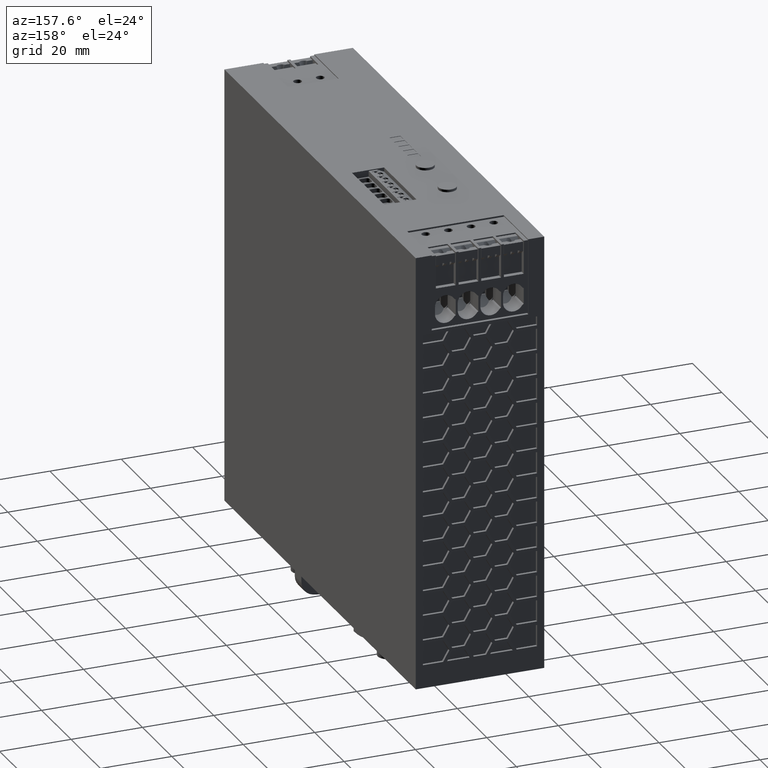
[diagram: clean part render]
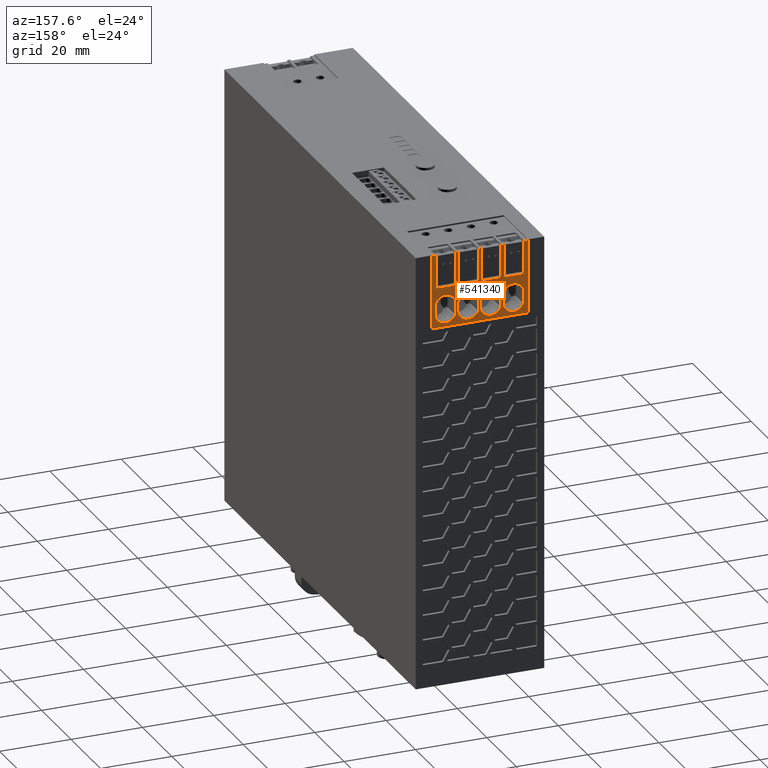
[diagram: same view with one face highlighted and labeled with its STEP entity id]
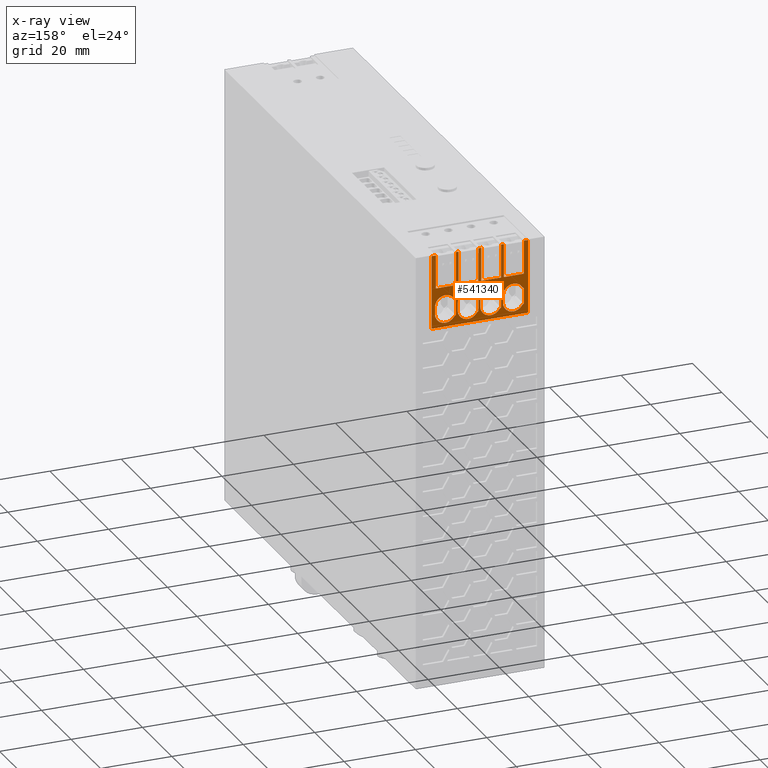
[diagram: x-ray of the same camera — body ghosted, the highlighted face saturated]
A machine part, auxiliary view. The second image highlights one B-rep face of the part: STEP entity #541340.
The next image is the same camera in x-ray: the body ghosted, the highlighted face saturated — about 0% of this face is hidden behind the body in this view.
In plain terms, the highlighted planar face has unit normal (0, 1, 0).
Its self-contained STEP definition (entity closure, byte-faithful):
#400070=CARTESIAN_POINT('',(31.5,129.900000002161,131.60000000419));
#400080=VERTEX_POINT('',#400070);
#400110=CARTESIAN_POINT('',(31.5,129.900000002161,131.2));
#400120=DIRECTION('',(0.,-6.12775601141841E-250,1.));
#400130=VECTOR('',#400120,1.);
#400140=LINE('',#400110,#400130);
#400150=CARTESIAN_POINT('',(31.5,129.900000002161,110.999999999047));
#400160=VERTEX_POINT('',#400150);
#400170=EDGE_CURVE('',#400160,#400080,#400140,.T.);
#400670=CARTESIAN_POINT('',(4.5,129.900000002161,110.999999999047));
#400680=VERTEX_POINT('',#400670);
#400730=CARTESIAN_POINT('',(4.5,129.900000002161,131.2));
#400740=DIRECTION('',(-0.,6.12775601141841E-250,-1.));
#400750=VECTOR('',#400740,1.);
#400760=LINE('',#400730,#400750);
#400770=CARTESIAN_POINT('',(4.5,129.900000002161,131.60000000419));
#400780=VERTEX_POINT('',#400770);
#400790=EDGE_CURVE('',#400780,#400680,#400760,.T.);
#526770=CARTESIAN_POINT('',(38.9583760060492,129.900000002161,
122.249999999047));
#526780=DIRECTION('',(-1.,1.66533453693773E-16,7.31667572330088E-115));
#526790=VECTOR('',#526780,1.);
#526800=LINE('',#526770,#526790);
#526810=CARTESIAN_POINT('',(17.5986736042292,129.900000002161,
122.249999999047));
#526820=VERTEX_POINT('',#526810);
#526830=CARTESIAN_POINT('',(12.0486736042292,129.900000002161,
122.249999999047));
#526840=VERTEX_POINT('',#526830);
#526850=EDGE_CURVE('',#526820,#526840,#526800,.T.);
#536960=CARTESIAN_POINT('',(17.5986736042292,129.900000002161,
158.711171773307));
#536970=DIRECTION('',(-3.6795946252855E-234,0.,1.));
#536980=VECTOR('',#536970,1.);
#536990=LINE('',#536960,#536980);
#537000=CARTESIAN_POINT('',(17.5986736042292,129.900000002161,
131.60000000419));
#537010=VERTEX_POINT('',#537000);
#537020=EDGE_CURVE('',#526820,#537010,#536990,.T.);
#537690=CARTESIAN_POINT('',(12.0486736042292,129.900000002161,
131.60000000419));
#537700=VERTEX_POINT('',#537690);
#537730=CARTESIAN_POINT('',(12.0486736042292,129.900000002161,
158.711171773307));
#537740=DIRECTION('',(-3.6795946252855E-234,0.,1.));
#537750=VECTOR('',#537740,1.);
#537760=LINE('',#537730,#537750);
#537770=EDGE_CURVE('',#526840,#537700,#537760,.T.);
#537920=CARTESIAN_POINT('',(31.4361786442295,129.900000002161,
132.115005044318));
#537930=DIRECTION('',(1.66533453693773E-16,1.,6.12775601141841E-250));
#537940=DIRECTION('',(3.6795946252855E-234,-0.,-1.));
#537950=AXIS2_PLACEMENT_3D('',#537920,#537930,#537940);
#537960=PLANE('',#537950);
#537970=CARTESIAN_POINT('',(21.2986736048012,129.900000002161,
114.950804001168));
#537980=DIRECTION('',(1.66533453693773E-16,1.,-1.21847127775868E-130));
#537990=DIRECTION('',(3.6795946252855E-234,-0.,-1.));
#538000=AXIS2_PLACEMENT_3D('',#537970,#537980,#537990);
#538010=CIRCLE('',#538000,2.90000000000001);
#538020=CARTESIAN_POINT('',(24.1986736047943,129.900000002161,
114.950804000374));
#538030=VERTEX_POINT('',#538020);
#538040=CARTESIAN_POINT('',(18.881984673712,129.900000002161,
113.347802250793));
#538050=VERTEX_POINT('',#538040);
#538060=EDGE_CURVE('',#538030,#538050,#538010,.T.);
#538070=ORIENTED_EDGE('',*,*,#538060,.F.);
#538080=CARTESIAN_POINT('',(17.9653095619938,129.900000002161,
112.739767104146));
#538090=DIRECTION('',(1.66533453693773E-16,1.,-1.21847127775868E-130));
#538100=DIRECTION('',(3.6795946252855E-234,-0.,-1.));
#538110=AXIS2_PLACEMENT_3D('',#538080,#538090,#538100);
#538120=CIRCLE('',#538110,1.10000000000069);
#538130=CARTESIAN_POINT('',(18.3986736049339,129.900000002161,
113.750804000747));
#538140=VERTEX_POINT('',#538130);
#538150=EDGE_CURVE('',#538140,#538050,#538120,.T.);
#538160=ORIENTED_EDGE('',*,*,#538150,.T.);
#538170=CARTESIAN_POINT('',(18.3986736049339,129.900000002161,
158.711171773307));
#538180=DIRECTION('',(3.6795946252855E-234,-0.,-1.));
#538190=VECTOR('',#538180,1.);
#538200=LINE('',#538170,#538190);
#538210=CARTESIAN_POINT('',(18.3986736049339,129.900000002161,
118.200804001161));
#538220=VERTEX_POINT('',#538210);
#538230=EDGE_CURVE('',#538220,#538140,#538200,.T.);
#538240=ORIENTED_EDGE('',*,*,#538230,.T.);
#538250=CARTESIAN_POINT('',(17.9653095619839,129.900000002161,
119.211840897757));
#538260=DIRECTION('',(1.66533453693773E-16,1.,-1.21847127775868E-130));
#538270=DIRECTION('',(3.6795946252855E-234,-0.,-1.));
#538280=AXIS2_PLACEMENT_3D('',#538250,#538260,#538270);
#538290=CIRCLE('',#538280,1.10000000000048);
#538300=CARTESIAN_POINT('',(18.8819846738836,129.900000002161,
118.603805751115));
#538310=VERTEX_POINT('',#538300);
#538320=EDGE_CURVE('',#538310,#538220,#538290,.T.);
#538330=ORIENTED_EDGE('',*,*,#538320,.T.);
#538340=CARTESIAN_POINT('',(21.2986736048242,129.900000002161,
117.000804001167));
#538350=DIRECTION('',(1.66533453693773E-16,1.,-1.21847127775868E-130));
#538360=DIRECTION('',(3.6795946252855E-234,-0.,-1.));
#538370=AXIS2_PLACEMENT_3D('',#538340,#538350,#538360);
#538380=CIRCLE('',#538370,2.89999999987401);
#538390=CARTESIAN_POINT('',(24.1986736046982,129.900000002161,
117.000804001166));
#538400=VERTEX_POINT('',#538390);
#538410=EDGE_CURVE('',#538310,#538400,#538380,.T.);
#538420=ORIENTED_EDGE('',*,*,#538410,.F.);
#538430=CARTESIAN_POINT('',(24.1986736047943,129.900000002161,
158.711171773307));
#538440=DIRECTION('',(3.6795946252855E-234,-0.,-1.));
#538450=VECTOR('',#538440,1.);
#538460=LINE('',#538430,#538450);
#538470=EDGE_CURVE('',#538400,#538030,#538460,.T.);
#538480=ORIENTED_EDGE('',*,*,#538470,.F.);
#538490=EDGE_LOOP('',(#538480,#538420,#538330,#538240,#538160,#538070));
#538500=FACE_BOUND('',#538490,.T.);
#538510=CARTESIAN_POINT('',(24.3153095619844,129.900000002161,
119.211840897757));
#538520=DIRECTION('',(1.66533453693773E-16,1.,-1.21847127775868E-130));
#538530=DIRECTION('',(3.6795946252855E-234,-0.,-1.));
#538540=AXIS2_PLACEMENT_3D('',#538510,#538520,#538530);
#538550=CIRCLE('',#538540,1.09999999999979);
#538560=CARTESIAN_POINT('',(25.2319846737598,129.900000002161,
118.603805751197));
#538570=VERTEX_POINT('',#538560);
#538580=CARTESIAN_POINT('',(24.7486736049339,129.900000002161,
118.200804001161));
#538590=VERTEX_POINT('',#538580);
#538600=EDGE_CURVE('',#538570,#538590,#538550,.T.);
#538610=ORIENTED_EDGE('',*,*,#538600,.T.);
#538620=CARTESIAN_POINT('',(27.6486736048242,129.900000002161,
117.000804001167));
#538630=DIRECTION('',(1.66533453693773E-16,1.,-1.21847127775868E-130));
#538640=DIRECTION('',(3.6795946252855E-234,-0.,-1.));
#538650=AXIS2_PLACEMENT_3D('',#538620,#538630,#538640);
#538660=CIRCLE('',#538650,2.89999999987399);
#538670=CARTESIAN_POINT('',(30.5486736046981,129.900000002161,
117.000804001112));
#538680=VERTEX_POINT('',#538670);
#538690=EDGE_CURVE('',#538570,#538680,#538660,.T.);
#538700=ORIENTED_EDGE('',*,*,#538690,.F.);
#538710=CARTESIAN_POINT('',(30.5486736047943,129.900000002161,
158.711171773307));
#538720=DIRECTION('',(3.6795946252855E-234,-0.,-1.));
#538730=VECTOR('',#538720,1.);
#538740=LINE('',#538710,#538730);
#538750=CARTESIAN_POINT('',(30.5486736048012,129.900000002161,
114.950804000374));
#538760=VERTEX_POINT('',#538750);
#538770=EDGE_CURVE('',#538680,#538760,#538740,.T.);
#538780=ORIENTED_EDGE('',*,*,#538770,.F.);
#538790=CARTESIAN_POINT('',(27.6486736048012,129.900000002161,
114.950804001168));
#538800=DIRECTION('',(1.66533453693773E-16,1.,-1.21847127775868E-130));
#538810=DIRECTION('',(3.6795946252855E-234,-0.,-1.));
#538820=AXIS2_PLACEMENT_3D('',#538790,#538800,#538810);
#538830=CIRCLE('',#538820,2.90000000000006);
#538840=CARTESIAN_POINT('',(25.231984673713,129.900000002161,
113.347802250791));
#538850=VERTEX_POINT('',#538840);
#538860=EDGE_CURVE('',#538760,#538850,#538830,.T.);
#538870=ORIENTED_EDGE('',*,*,#538860,.F.);
#538880=CARTESIAN_POINT('',(24.3153095619948,129.900000002161,
112.739767104147));
#538890=DIRECTION('',(1.66533453693773E-16,1.,-1.21847127775868E-130));
#538900=DIRECTION('',(3.6795946252855E-234,-0.,-1.));
#538910=AXIS2_PLACEMENT_3D('',#538880,#538890,#538900);
#538920=CIRCLE('',#538910,1.09999999999916);
#538930=CARTESIAN_POINT('',(24.748673604934,129.900000002161,
113.750804000747));
#538940=VERTEX_POINT('',#538930);
#538950=EDGE_CURVE('',#538940,#538850,#538920,.T.);
#538960=ORIENTED_EDGE('',*,*,#538950,.T.);
#538970=CARTESIAN_POINT('',(24.7486736049339,129.900000002161,
158.711171773307));
#538980=DIRECTION('',(3.6795946252855E-234,-0.,-1.));
#538990=VECTOR('',#538980,1.);
#539000=LINE('',#538970,#538990);
#539010=EDGE_CURVE('',#538590,#538940,#539000,.T.);
#539020=ORIENTED_EDGE('',*,*,#539010,.T.);
#539030=EDGE_LOOP('',(#539020,#538960,#538870,#538780,#538700,#538610));
#539040=FACE_BOUND('',#539030,.T.);
#539050=CARTESIAN_POINT('',(8.59867360479617,129.900000002161,
114.950804001168));
#539060=DIRECTION('',(1.66533453693773E-16,1.,-1.21847127775868E-130));
#539070=DIRECTION('',(3.6795946252855E-234,-0.,-1.));
#539080=AXIS2_PLACEMENT_3D('',#539050,#539060,#539070);
#539090=CIRCLE('',#539080,2.90000000000001);
#539100=CARTESIAN_POINT('',(11.4986736047893,129.900000002161,
114.950804000969));
#539110=VERTEX_POINT('',#539100);
#539120=CARTESIAN_POINT('',(6.18198467370703,129.900000002161,
113.347802250793));
#539130=VERTEX_POINT('',#539120);
#539140=EDGE_CURVE('',#539110,#539130,#539090,.T.);
#539150=ORIENTED_EDGE('',*,*,#539140,.F.);
#539160=CARTESIAN_POINT('',(5.26530956198879,129.900000002161,
112.739767104146));
#539170=DIRECTION('',(1.66533453693773E-16,1.,-1.21847127775868E-130));
#539180=DIRECTION('',(3.6795946252855E-234,-0.,-1.));
#539190=AXIS2_PLACEMENT_3D('',#539160,#539170,#539180);
#539200=CIRCLE('',#539190,1.10000000000069);
#539210=CARTESIAN_POINT('',(5.69867360492893,129.900000002161,
113.750804000747));
#539220=VERTEX_POINT('',#539210);
#539230=EDGE_CURVE('',#539220,#539130,#539200,.T.);
#539240=ORIENTED_EDGE('',*,*,#539230,.T.);
#539250=CARTESIAN_POINT('',(5.69867360492893,129.900000002161,
158.711171773307));
#539260=DIRECTION('',(3.6795946252855E-234,-0.,-1.));
#539270=VECTOR('',#539260,1.);
#539280=LINE('',#539250,#539270);
#539290=CARTESIAN_POINT('',(5.69867360492893,129.900000002161,
118.200804001161));
#539300=VERTEX_POINT('',#539290);
#539310=EDGE_CURVE('',#539300,#539220,#539280,.T.);
#539320=ORIENTED_EDGE('',*,*,#539310,.T.);
#539330=CARTESIAN_POINT('',(5.2653095619789,129.900000002161,
119.211840897757));
#539340=DIRECTION('',(1.66533453693773E-16,1.,-1.21847127775868E-130));
#539350=DIRECTION('',(3.6795946252855E-234,-0.,-1.));
#539360=AXIS2_PLACEMENT_3D('',#539330,#539340,#539350);
#539370=CIRCLE('',#539360,1.10000000000048);
#539380=CARTESIAN_POINT('',(6.18198467387856,129.900000002161,
118.603805751115));
#539390=VERTEX_POINT('',#539380);
#539400=EDGE_CURVE('',#539390,#539300,#539370,.T.);
#539410=ORIENTED_EDGE('',*,*,#539400,.T.);
#539420=CARTESIAN_POINT('',(8.59867360481917,129.900000002161,
117.000804001167));
#539430=DIRECTION('',(1.66533453693773E-16,1.,-1.21847127775868E-130));
#539440=DIRECTION('',(3.6795946252855E-234,-0.,-1.));
#539450=AXIS2_PLACEMENT_3D('',#539420,#539430,#539440);
#539460=CIRCLE('',#539450,2.89999999987401);
#539470=CARTESIAN_POINT('',(11.4986736047893,129.900000002161,
117.000804001112));
#539480=VERTEX_POINT('',#539470);
#539490=EDGE_CURVE('',#539390,#539480,#539460,.T.);
#539500=ORIENTED_EDGE('',*,*,#539490,.F.);
#539510=CARTESIAN_POINT('',(11.4986736047893,129.900000002161,
158.711171773307));
#539520=DIRECTION('',(3.6795946252855E-234,-0.,-1.));
#539530=VECTOR('',#539520,1.);
#539540=LINE('',#539510,#539530);
#539550=EDGE_CURVE('',#539480,#539110,#539540,.T.);
#539560=ORIENTED_EDGE('',*,*,#539550,.F.);
#539570=EDGE_LOOP('',(#539560,#539500,#539410,#539320,#539240,#539150));
#539580=FACE_BOUND('',#539570,.T.);
#539590=CARTESIAN_POINT('',(11.6153095619794,129.900000002161,
119.211840897757));
#539600=DIRECTION('',(1.66533453693773E-16,1.,-1.21847127775868E-130));
#539610=DIRECTION('',(3.6795946252855E-234,-0.,-1.));
#539620=AXIS2_PLACEMENT_3D('',#539590,#539600,#539610);
#539630=CIRCLE('',#539620,1.09999999999979);
#539640=CARTESIAN_POINT('',(12.5319846738786,129.900000002161,
118.603805751115));
#539650=VERTEX_POINT('',#539640);
#539660=CARTESIAN_POINT('',(12.0486736049289,129.900000002161,
118.200804001161));
#539670=VERTEX_POINT('',#539660);
#539680=EDGE_CURVE('',#539650,#539670,#539630,.T.);
#539690=ORIENTED_EDGE('',*,*,#539680,.T.);
#539700=CARTESIAN_POINT('',(14.9486736048192,129.900000002161,
117.000804001167));
#539710=DIRECTION('',(1.66533453693773E-16,1.,-1.21847127775868E-130));
#539720=DIRECTION('',(3.6795946252855E-234,-0.,-1.));
#539730=AXIS2_PLACEMENT_3D('',#539700,#539710,#539720);
#539740=CIRCLE('',#539730,2.89999999987399);
#539750=CARTESIAN_POINT('',(17.8486736046932,129.900000002161,
117.000804001112));
#539760=VERTEX_POINT('',#539750);
#539770=EDGE_CURVE('',#539650,#539760,#539740,.T.);
#539780=ORIENTED_EDGE('',*,*,#539770,.F.);
#539790=CARTESIAN_POINT('',(17.8486736047893,129.900000002161,
158.711171773307));
#539800=DIRECTION('',(3.6795946252855E-234,-0.,-1.));
#539810=VECTOR('',#539800,1.);
#539820=LINE('',#539790,#539810);
#539830=CARTESIAN_POINT('',(17.8486736047962,129.900000002161,
114.950804000374));
#539840=VERTEX_POINT('',#539830);
#539850=EDGE_CURVE('',#539760,#539840,#539820,.T.);
#539860=ORIENTED_EDGE('',*,*,#539850,.F.);
#539870=CARTESIAN_POINT('',(14.9486736047962,129.900000002161,
114.950804001168));
#539880=DIRECTION('',(1.66533453693773E-16,1.,-1.21847127775868E-130));
#539890=DIRECTION('',(3.6795946252855E-234,-0.,-1.));
#539900=AXIS2_PLACEMENT_3D('',#539870,#539880,#539890);
#539910=CIRCLE('',#539900,2.90000000000006);
#539920=CARTESIAN_POINT('',(12.531984673707,129.900000002161,
113.347802250793));
#539930=VERTEX_POINT('',#539920);
#539940=EDGE_CURVE('',#539840,#539930,#539910,.T.);
#539950=ORIENTED_EDGE('',*,*,#539940,.F.);
#539960=CARTESIAN_POINT('',(11.6153095619898,129.900000002161,
112.739767104147));
#539970=DIRECTION('',(1.66533453693773E-16,1.,-1.21847127775868E-130));
#539980=DIRECTION('',(3.6795946252855E-234,-0.,-1.));
#539990=AXIS2_PLACEMENT_3D('',#539960,#539970,#539980);
#540000=CIRCLE('',#539990,1.09999999999916);
#540010=CARTESIAN_POINT('',(12.0486736049289,129.900000002161,
113.750804000747));
#540020=VERTEX_POINT('',#540010);
#540030=EDGE_CURVE('',#540020,#539930,#540000,.T.);
#540040=ORIENTED_EDGE('',*,*,#540030,.T.);
#540050=CARTESIAN_POINT('',(12.0486736049289,129.900000002161,
158.711171773307));
#540060=DIRECTION('',(3.6795946252855E-234,-0.,-1.));
#540070=VECTOR('',#540060,1.);
#540080=LINE('',#540050,#540070);
#540090=EDGE_CURVE('',#539670,#540020,#540080,.T.);
#540100=ORIENTED_EDGE('',*,*,#540090,.T.);
#540110=EDGE_LOOP('',(#540100,#540040,#539950,#539860,#539780,#539690));
#540120=FACE_BOUND('',#540110,.T.);
#540130=ORIENTED_EDGE('',*,*,#400170,.F.);
#540140=CARTESIAN_POINT('',(0.,129.900000002161,131.60000000419));
#540150=DIRECTION('',(1.,-1.66533453693773E-16,0.));
#540160=VECTOR('',#540150,1.);
#540170=LINE('',#540140,#540160);
#540180=CARTESIAN_POINT('',(30.2986736042342,129.900000002161,
131.60000000419));
#540190=VERTEX_POINT('',#540180);
#540200=EDGE_CURVE('',#540190,#400080,#540170,.T.);
#540210=ORIENTED_EDGE('',*,*,#540200,.T.);
#540220=CARTESIAN_POINT('',(30.2986736042342,129.900000002161,
158.711171773307));
#540230=DIRECTION('',(-3.6795946252855E-234,0.,1.));
#540240=VECTOR('',#540230,1.);
#540250=LINE('',#540220,#540240);
#540260=CARTESIAN_POINT('',(30.2986736042342,129.900000002161,
122.249999999047));
#540270=VERTEX_POINT('',#540260);
#540280=EDGE_CURVE('',#540270,#540190,#540250,.T.);
#540290=ORIENTED_EDGE('',*,*,#540280,.T.);
#540300=CARTESIAN_POINT('',(51.6583760060542,129.900000002161,
122.249999999047));
#540310=DIRECTION('',(-1.,1.66533453693773E-16,7.31667572330088E-115));
#540320=VECTOR('',#540310,1.);
#540330=LINE('',#540300,#540320);
#540340=CARTESIAN_POINT('',(24.7486736042342,129.900000002161,
122.249999999047));
#540350=VERTEX_POINT('',#540340);
#540360=EDGE_CURVE('',#540270,#540350,#540330,.T.);
#540370=ORIENTED_EDGE('',*,*,#540360,.F.);
#540380=CARTESIAN_POINT('',(24.7486736042342,129.900000002161,
158.711171773307));
#540390=DIRECTION('',(-3.6795946252855E-234,0.,1.));
#540400=VECTOR('',#540390,1.);
#540410=LINE('',#540380,#540400);
#540420=CARTESIAN_POINT('',(24.7486736042342,129.900000002161,
131.60000000419));
#540430=VERTEX_POINT('',#540420);
#540440=EDGE_CURVE('',#540350,#540430,#540410,.T.);
#540450=ORIENTED_EDGE('',*,*,#540440,.F.);
#540460=CARTESIAN_POINT('',(51.6583760060542,129.900000002161,
131.60000000419));
#540470=DIRECTION('',(1.,-1.66533453693773E-16,-7.31667572330088E-115));
#540480=VECTOR('',#540470,1.);
#540490=LINE('',#540460,#540480);
#540500=CARTESIAN_POINT('',(23.9486736042342,129.900000002161,
131.60000000419));
#540510=VERTEX_POINT('',#540500);
#540520=EDGE_CURVE('',#540510,#540430,#540490,.T.);
#540530=ORIENTED_EDGE('',*,*,#540520,.T.);
#540540=CARTESIAN_POINT('',(23.9486736042342,129.900000002161,
158.711171773307));
#540550=DIRECTION('',(-3.6795946252855E-234,0.,1.));
#540560=VECTOR('',#540550,1.);
#540570=LINE('',#540540,#540560);
#540580=CARTESIAN_POINT('',(23.9486736042342,129.900000002161,
122.249999999047));
#540590=VERTEX_POINT('',#540580);
#540600=EDGE_CURVE('',#540590,#540510,#540570,.T.);
#540610=ORIENTED_EDGE('',*,*,#540600,.T.);
#540620=CARTESIAN_POINT('',(51.6583760060542,129.900000002161,
122.249999999047));
#540630=DIRECTION('',(-1.,1.66533453693773E-16,7.31667572330088E-115));
#540640=VECTOR('',#540630,1.);
#540650=LINE('',#540620,#540640);
#540660=CARTESIAN_POINT('',(18.3986736041942,129.900000002161,
122.249999999047));
#540670=VERTEX_POINT('',#540660);
#540680=EDGE_CURVE('',#540590,#540670,#540650,.T.);
#540690=ORIENTED_EDGE('',*,*,#540680,.F.);
#540700=CARTESIAN_POINT('',(18.3986736041942,129.900000002161,
158.711171773307));
#540710=DIRECTION('',(-3.6795946252855E-234,0.,1.));
#540720=VECTOR('',#540710,1.);
#540730=LINE('',#540700,#540720);
#540740=CARTESIAN_POINT('',(18.3986736041942,129.900000002161,
131.60000000419));
#540750=VERTEX_POINT('',#540740);
#540760=EDGE_CURVE('',#540670,#540750,#540730,.T.);
#540770=ORIENTED_EDGE('',*,*,#540760,.F.);
#540780=CARTESIAN_POINT('',(51.6583760060542,129.900000002161,
131.60000000419));
#540790=DIRECTION('',(-1.,1.66533453693773E-16,7.31667572330088E-115));
#540800=VECTOR('',#540790,1.);
#540810=LINE('',#540780,#540800);
#540820=EDGE_CURVE('',#540750,#537010,#540810,.T.);
#540830=ORIENTED_EDGE('',*,*,#540820,.F.);
#540840=ORIENTED_EDGE('',*,*,#537020,.T.);
#540850=ORIENTED_EDGE('',*,*,#526850,.F.);
#540860=ORIENTED_EDGE('',*,*,#537770,.F.);
#540870=CARTESIAN_POINT('',(38.9583760060492,129.900000002161,
131.60000000419));
#540880=DIRECTION('',(1.,-1.66533453693773E-16,-7.31667572330088E-115));
#540890=VECTOR('',#540880,1.);
#540900=LINE('',#540870,#540890);
#540910=CARTESIAN_POINT('',(11.2486736042292,129.900000002161,
131.60000000419));
#540920=VERTEX_POINT('',#540910);
#540930=EDGE_CURVE('',#540920,#537700,#540900,.T.);
#540940=ORIENTED_EDGE('',*,*,#540930,.T.);
#540950=CARTESIAN_POINT('',(11.2486736042292,129.900000002161,
158.711171773307));
#540960=DIRECTION('',(-3.6795946252855E-234,0.,1.));
#540970=VECTOR('',#540960,1.);
#540980=LINE('',#540950,#540970);
#540990=CARTESIAN_POINT('',(11.2486736042292,129.900000002161,
122.249999999047));
#541000=VERTEX_POINT('',#540990);
#541010=EDGE_CURVE('',#541000,#540920,#540980,.T.);
#541020=ORIENTED_EDGE('',*,*,#541010,.T.);
#541030=CARTESIAN_POINT('',(38.9583760060492,129.900000002161,
122.249999999047));
#541040=DIRECTION('',(-1.,1.66533453693773E-16,7.31667572330088E-115));
#541050=VECTOR('',#541040,1.);
#541060=LINE('',#541030,#541050);
#541070=CARTESIAN_POINT('',(5.69867360418923,129.900000002161,
122.249999999047));
#541080=VERTEX_POINT('',#541070);
#541090=EDGE_CURVE('',#541000,#541080,#541060,.T.);
#541100=ORIENTED_EDGE('',*,*,#541090,.F.);
#541110=CARTESIAN_POINT('',(5.69867360418923,129.900000002161,
158.711171773307));
#541120=DIRECTION('',(-3.6795946252855E-234,0.,1.));
#541130=VECTOR('',#541120,1.);
#541140=LINE('',#541110,#541130);
#541150=CARTESIAN_POINT('',(5.69867360418923,129.900000002161,
131.60000000419));
#541160=VERTEX_POINT('',#541150);
#541170=EDGE_CURVE('',#541080,#541160,#541140,.T.);
#541180=ORIENTED_EDGE('',*,*,#541170,.F.);
#541190=CARTESIAN_POINT('',(0.,129.900000002161,131.60000000419));
#541200=DIRECTION('',(-1.,1.66533453693773E-16,0.));
#541210=VECTOR('',#541200,1.);
#541220=LINE('',#541190,#541210);
#541230=EDGE_CURVE('',#541160,#400780,#541220,.T.);
#541240=ORIENTED_EDGE('',*,*,#541230,.F.);
#541250=ORIENTED_EDGE('',*,*,#400790,.F.);
#541260=CARTESIAN_POINT('',(0.,129.900000002161,110.999999999047));
#541270=DIRECTION('',(1.,-1.66533453693773E-16,0.));
#541280=VECTOR('',#541270,1.);
#541290=LINE('',#541260,#541280);
#541300=EDGE_CURVE('',#400680,#400160,#541290,.T.);
#541310=ORIENTED_EDGE('',*,*,#541300,.F.);
#541320=EDGE_LOOP('',(#541310,#541250,#541240,#541180,#541100,#541020,
#540940,#540860,#540850,#540840,#540830,#540770,#540690,#540610,#540530,
#540450,#540370,#540290,#540210,#540130));
#541330=FACE_OUTER_BOUND('',#541320,.T.);
#541340=ADVANCED_FACE('',(#538500,#539040,#539580,#540120,#541330),
#537960,.T.);